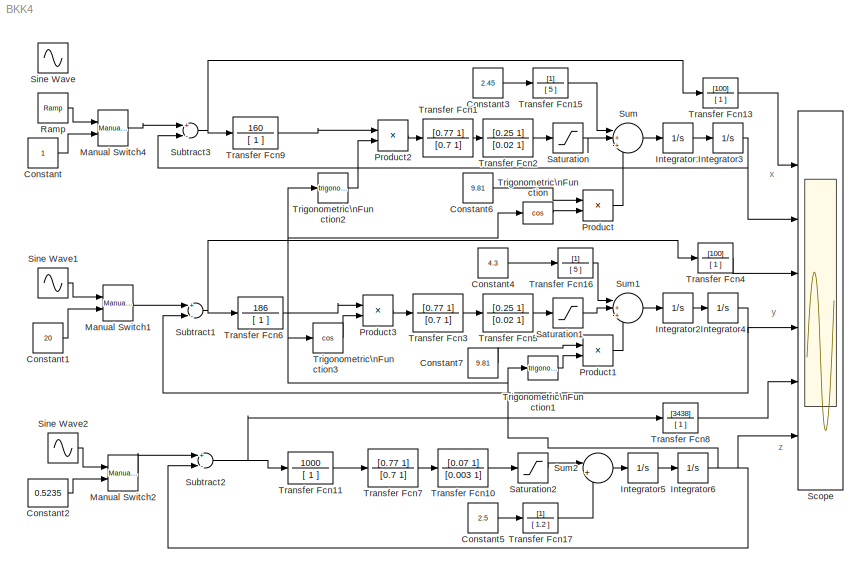
MODEL BKK4
KIND model
BLOCK [Constant] Constant
  SID = 8
BLOCK [Constant] Constant1
  SID = 28
  Value = 20
BLOCK [Constant] Constant2
  SID = 30
  Value = 0.5235
BLOCK [Constant] Constant3
  SID = 39
  Value = 2.45
BLOCK [Constant] Constant4
  SID = 41
  Value = 4.3
BLOCK [Constant] Constant5
  SID = 44
  Value = 2.5
BLOCK [Constant] Constant6
  SID = 50
  Value = 9.81
BLOCK [Constant] Constant7
  SID = 52
  Value = 9.81
BLOCK [Integrator] Integrator1
  Ports = [1, 1]
  SID = 1
BLOCK [Integrator] Integrator2
  Ports = [1, 1]
  SID = 12
BLOCK [Integrator] Integrator3
  Ports = [1, 1]
  SID = 2
BLOCK [Integrator] Integrator4
  Ports = [1, 1]
  SID = 13
BLOCK [Integrator] Integrator5
  Ports = [1, 1]
  SID = 20
BLOCK [Integrator] Integrator6
  Ports = [1, 1]
  SID = 21
BLOCK [Reference] Manual Switch1  REF=simulink/Signal\nRouting/Manual Switch
  FunctionWithSeparateData = off
  GeneratePreprocessorConditionals = off
  Ports = [2, 1]
  RTWMemSecDataConstants = Inherit from model
  RTWMemSecDataInternal = Inherit from model
  RTWMemSecDataParameters = Inherit from model
  RTWMemSecFuncExecute = Inherit from model
  RTWMemSecFuncInitTerm = Inherit from model
  SID = 14
  ShowPortLabels = FromPortIcon
  SourceBlock = simulink/Signal\nRouting/Manual Switch
  SourceType = Manual Switch
  SystemSampleTime = -1
  action = 0
  sw = 0
  varsize = off
BLOCK [Reference] Manual Switch2  REF=simulink/Signal\nRouting/Manual Switch
  FunctionWithSeparateData = off
  GeneratePreprocessorConditionals = off
  Ports = [2, 1]
  RTWMemSecDataConstants = Inherit from model
  RTWMemSecDataInternal = Inherit from model
  RTWMemSecDataParameters = Inherit from model
  RTWMemSecFuncExecute = Inherit from model
  RTWMemSecFuncInitTerm = Inherit from model
  SID = 22
  ShowPortLabels = FromPortIcon
  SourceBlock = simulink/Signal\nRouting/Manual Switch
  SourceType = Manual Switch
  SystemSampleTime = -1
  action = 0
  sw = 0
  varsize = off
BLOCK [Reference] Manual Switch4  REF=simulink/Signal\nRouting/Manual Switch
  FunctionWithSeparateData = off
  GeneratePreprocessorConditionals = off
  Ports = [2, 1]
  RTWMemSecDataConstants = Inherit from model
  RTWMemSecDataInternal = Inherit from model
  RTWMemSecDataParameters = Inherit from model
  RTWMemSecFuncExecute = Inherit from model
  RTWMemSecFuncInitTerm = Inherit from model
  SID = 9
  ShowPortLabels = FromPortIcon
  SourceBlock = simulink/Signal\nRouting/Manual Switch
  SourceType = Manual Switch
  SystemSampleTime = -1
  action = 0
  sw = 1
  varsize = off
BLOCK [Product] Product
  InputSameDT = off
  OutDataTypeStr = Inherit: Inherit via internal rule
  Ports = [2, 1]
  SID = 48
  SaturateOnIntegerOverflow = off
BLOCK [Product] Product1
  InputSameDT = off
  OutDataTypeStr = Inherit: Inherit via internal rule
  Ports = [2, 1]
  SID = 53
  SaturateOnIntegerOverflow = off
BLOCK [Product] Product2
  InputSameDT = off
  OutDataTypeStr = Inherit: Inherit via internal rule
  Ports = [2, 1]
  SID = 56
  SaturateOnIntegerOverflow = off
BLOCK [Product] Product3
  InputSameDT = off
  OutDataTypeStr = Inherit: Inherit via internal rule
  Ports = [2, 1]
  SID = 59
  SaturateOnIntegerOverflow = off
BLOCK [Reference] Ramp  REF=simulink/Sources/Ramp
  FunctionWithSeparateData = off
  GeneratePreprocessorConditionals = off
  Ports = [0, 1]
  RTWMemSecDataConstants = Inherit from model
  RTWMemSecDataInternal = Inherit from model
  RTWMemSecDataParameters = Inherit from model
  RTWMemSecFuncExecute = Inherit from model
  RTWMemSecFuncInitTerm = Inherit from model
  SID = 46
  ShowPortLabels = FromPortIcon
  SourceBlock = simulink/Sources/Ramp
  SourceType = Ramp
  SystemSampleTime = -1
  VectorParams1D = on
  X0 = 0
  slope = 1
  start = 0
BLOCK [Saturate] Saturation
  InputPortMap = u0
  LowerLimit = -10
  Ports = [1, 1]
  SID = 61
  UpperLimit = 10
BLOCK [Saturate] Saturation1
  InputPortMap = u0
  LowerLimit = -17.2
  Ports = [1, 1]
  SID = 62
  UpperLimit = 17.2
BLOCK [Saturate] Saturation2
  InputPortMap = u0
  LowerLimit = -20
  Ports = [1, 1]
  SID = 63
  UpperLimit = 20
BLOCK [Scope] Scope
  DataFormat = StructureWithTime
  Floating = off
  MaxDataPoints = 5000000
  NumInputPorts = 6
  Ports = [6]
  SID = 7
  SampleTime = 0
  YMax = 5~5~5~5~5~5
  YMin = -5~-5~-5~-5~-5~-5
  ZoomMode = xonly
BLOCK [Sin] Sine Wave
  Amplitude = 0.1
  Frequency = 0.628
  Ports = [0, 1]
  SID = 10
  SampleTime = 0
BLOCK [Sin] Sine Wave1
  Amplitude = 0.1
  Frequency = 0.628
  Ports = [0, 1]
  SID = 29
  SampleTime = 0
BLOCK [Sin] Sine Wave2
  Amplitude = 0.1
  Frequency = 0.628
  Ports = [0, 1]
  SID = 31
  SampleTime = 0
BLOCK [Sum] Subtract1
  InputSameDT = off
  Inputs = +-
  OutDataTypeStr = Inherit: Inherit via internal rule
  Ports = [2, 1]
  SID = 15
  SaturateOnIntegerOverflow = off
BLOCK [Sum] Subtract2
  InputSameDT = off
  Inputs = +-
  OutDataTypeStr = Inherit: Inherit via internal rule
  Ports = [2, 1]
  SID = 23
  SaturateOnIntegerOverflow = off
BLOCK [Sum] Subtract3
  InputSameDT = off
  Inputs = +-
  OutDataTypeStr = Inherit: Inherit via internal rule
  Ports = [2, 1]
  SID = 3
  SaturateOnIntegerOverflow = off
BLOCK [Sum] Sum
  IconShape = round
  InputSameDT = off
  Inputs = |+++
  OutDataTypeStr = Inherit: Inherit via internal rule
  Ports = [3, 1]
  SID = 36
  SaturateOnIntegerOverflow = off
BLOCK [Sum] Sum1
  IconShape = round
  InputSameDT = off
  Inputs = |++-
  OutDataTypeStr = Inherit: Inherit via internal rule
  Ports = [3, 1]
  SID = 40
  SaturateOnIntegerOverflow = off
BLOCK [Sum] Sum2
  IconShape = round
  InputSameDT = off
  Inputs = |++
  OutDataTypeStr = Inherit: Inherit via internal rule
  Ports = [2, 1]
  SID = 43
  SaturateOnIntegerOverflow = off
BLOCK [TransferFcn] Transfer Fcn1
  Denominator = [0.7  1]
  Numerator = [0.77 1]
  SID = 4
BLOCK [TransferFcn] Transfer Fcn10
  Denominator = [0.003  1]
  Numerator = [0.07 1]
  SID = 26
BLOCK [TransferFcn] Transfer Fcn11
  Denominator = [ 1 ]
  Numerator = 1000
  SID = 27
BLOCK [TransferFcn] Transfer Fcn13
  Denominator = [ 1 ]
  Numerator = [100]
  SID = 11
BLOCK [TransferFcn] Transfer Fcn15
  Denominator = [ 5 ]
  SID = 38
BLOCK [TransferFcn] Transfer Fcn16
  Denominator = [ 5 ]
  SID = 42
BLOCK [TransferFcn] Transfer Fcn17
  Denominator = [ 1.2 ]
  SID = 45
BLOCK [TransferFcn] Transfer Fcn2
  Denominator = [0.02  1]
  Numerator = [0.25 1]
  SID = 5
BLOCK [TransferFcn] Transfer Fcn3
  Denominator = [0.7  1]
  Numerator = [0.77 1]
  SID = 16
BLOCK [TransferFcn] Transfer Fcn4
  Denominator = [ 1 ]
  Numerator = [100]
  SID = 17
BLOCK [TransferFcn] Transfer Fcn5
  Denominator = [0.02  1]
  Numerator = [0.25 1]
  SID = 18
BLOCK [TransferFcn] Transfer Fcn6
  Denominator = [ 1 ]
  Numerator = 186
  SID = 19
BLOCK [TransferFcn] Transfer Fcn7
  Denominator = [0.7  1]
  Numerator = [0.77 1]
  SID = 24
BLOCK [TransferFcn] Transfer Fcn8
  Denominator = [ 1 ]
  Numerator = [3438]
  SID = 25
BLOCK [TransferFcn] Transfer Fcn9
  Denominator = [ 1 ]
  Numerator = 160
  SID = 6
BLOCK [Trigonometry] Trigonometric\nFunction
  Operator = cos
  Ports = [1, 1]
  SID = 49
BLOCK [Trigonometry] Trigonometric\nFunction1
  Ports = [1, 1]
  SID = 54
BLOCK [Trigonometry] Trigonometric\nFunction2
  Ports = [1, 1]
  SID = 57
BLOCK [Trigonometry] Trigonometric\nFunction3
  Operator = cos
  Ports = [1, 1]
  SID = 60
ANNOTATION (root): x
ANNOTATION (root): y
ANNOTATION (root): z
LINE Constant1:1 -> Manual Switch1:2
LINE Constant2:1 -> Manual Switch2:2
LINE Constant3:1 -> Transfer Fcn15:1
LINE Constant4:1 -> Transfer Fcn16:1
LINE Constant5:1 -> Transfer Fcn17:1
LINE Constant6:1 -> Product:1
LINE Constant7:1 -> Product1:1
LINE Constant:1 -> Manual Switch4:2
LINE Integrator1:1 -> Integrator3:1
LINE Integrator2:1 -> Integrator4:1
NET Integrator3:1 -> Scope:2, Subtract3:2
NET Integrator4:1 -> Scope:4, Subtract1:2
LINE Integrator5:1 -> Integrator6:1
NET Integrator6:1 -> Scope:6, Subtract2:2, Trigonometric\nFunction1:1, Trigonometric\nFunction2:1, Trigonometric\nFunction3:1, Trigonometric\nFunction:1
LINE Manual Switch1:1 -> Subtract1:1
LINE Manual Switch2:1 -> Subtract2:1
LINE Manual Switch4:1 -> Subtract3:1
LINE Product1:1 -> Sum1:3
LINE Product2:1 -> Transfer Fcn1:1
LINE Product3:1 -> Transfer Fcn3:1
LINE Product:1 -> Sum:3
LINE Ramp:1 -> Manual Switch4:1
LINE Saturation1:1 -> Sum1:2
LINE Saturation2:1 -> Sum2:1
LINE Saturation:1 -> Sum:2
LINE Sine Wave1:1 -> Manual Switch1:1
LINE Sine Wave2:1 -> Manual Switch2:1
NET Subtract1:1 -> Transfer Fcn4:1, Transfer Fcn6:1
NET Subtract2:1 -> Transfer Fcn11:1, Transfer Fcn8:1
NET Subtract3:1 -> Transfer Fcn13:1, Transfer Fcn9:1
LINE Sum1:1 -> Integrator2:1
LINE Sum2:1 -> Integrator5:1
LINE Sum:1 -> Integrator1:1
LINE Transfer Fcn10:1 -> Saturation2:1
LINE Transfer Fcn11:1 -> Transfer Fcn7:1
LINE Transfer Fcn13:1 -> Scope:1
LINE Transfer Fcn15:1 -> Sum:1
LINE Transfer Fcn16:1 -> Sum1:1
LINE Transfer Fcn17:1 -> Sum2:2
LINE Transfer Fcn1:1 -> Transfer Fcn2:1
LINE Transfer Fcn2:1 -> Saturation:1
LINE Transfer Fcn3:1 -> Transfer Fcn5:1
LINE Transfer Fcn4:1 -> Scope:3
LINE Transfer Fcn5:1 -> Saturation1:1
LINE Transfer Fcn6:1 -> Product3:1
LINE Transfer Fcn7:1 -> Transfer Fcn10:1
LINE Transfer Fcn8:1 -> Scope:5
LINE Transfer Fcn9:1 -> Product2:1
LINE Trigonometric\nFunction1:1 -> Product1:2
LINE Trigonometric\nFunction2:1 -> Product2:2
LINE Trigonometric\nFunction3:1 -> Product3:2
LINE Trigonometric\nFunction:1 -> Product:2
note: NET lines group one-source signal fan-out (src -> all destinations, sorted); 1:1 wires keep LINE
